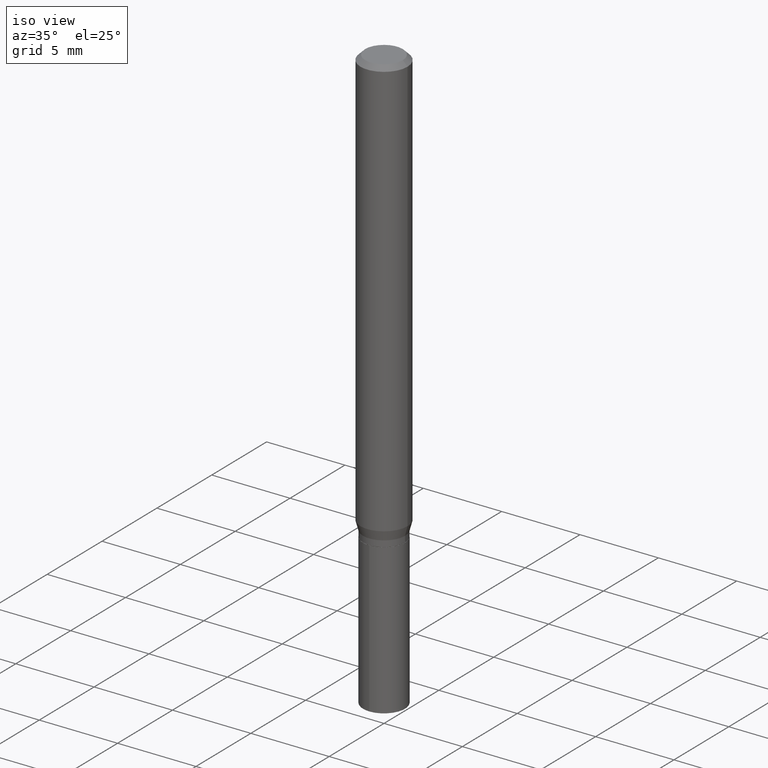
[diagram: clean part render]
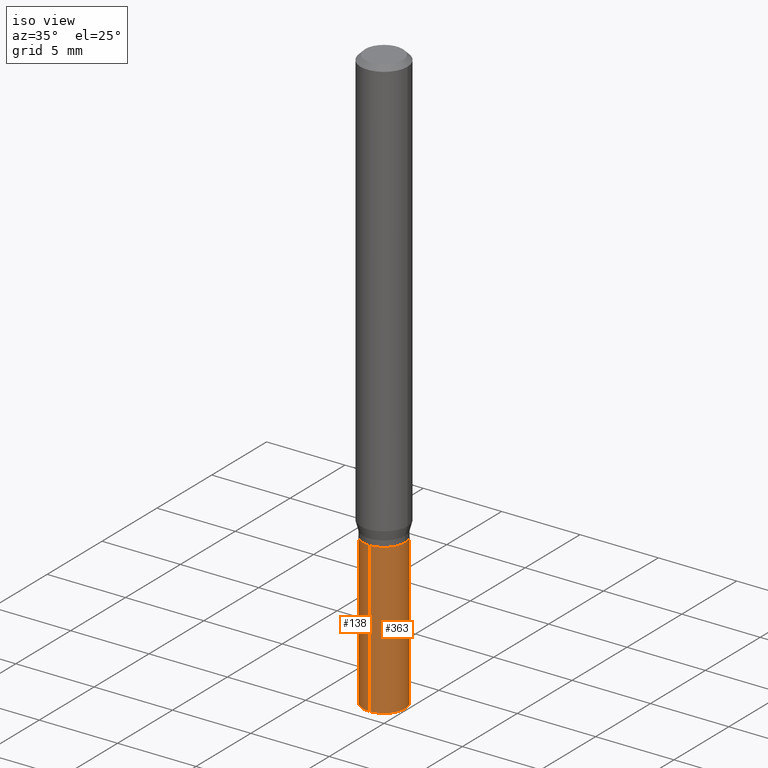
[diagram: same view with one multi-face feature highlighted, each face labeled with its STEP entity id]
A machine part, iso view. The highlighted faces form ONE feature: a constant-radius fillet chain: 2 tangent blend faces with common blend radius 1.3398 mm. The faces share edges in the B-rep.
Their STEP definitions:
[1] entity #138 (Cylinder):
#35 = VECTOR ( 'NONE', #267, 39.37007874015748143 ) ;
#48 = CIRCLE ( 'NONE', #58, 0.05274999999999999828 ) ;
#52 = DIRECTION ( 'NONE',  ( -2.445458899330790108E-29, 3.491495526022433205E-15, 1.000000000000000000 ) ) ;
#58 = AXIS2_PLACEMENT_3D ( 'NONE', #408, #118, #337 ) ;
#83 = LINE ( 'NONE', #87, #185 ) ;
#87 = CARTESIAN_POINT ( 'NONE',  ( -3.683512812479237438E-16, -0.05275000000000382161, -1.094499999999999806 ) ) ;
#113 = ORIENTED_EDGE ( 'NONE', *, *, #489, .F. ) ;
#118 = DIRECTION ( 'NONE',  ( -2.445458899330790108E-29, 3.491495526022433205E-15, 1.000000000000000000 ) ) ;
#124 = FACE_OUTER_BOUND ( 'NONE', #160, .T. ) ;
#138 = ADVANCED_FACE ( 'NONE', ( #124 ), #421, .T. ) ;
#151 = LINE ( 'NONE', #300, #35 ) ;
#156 = VERTEX_POINT ( 'NONE', #387 ) ;
#160 = EDGE_LOOP ( 'NONE', ( #455, #373, #446, #113 ) ) ;
#176 = AXIS2_PLACEMENT_3D ( 'NONE', #280, #52, #462 ) ;
#183 = VERTEX_POINT ( 'NONE', #432 ) ;
#185 = VECTOR ( 'NONE', #390, 39.37007874015748143 ) ;
#188 = CARTESIAN_POINT ( 'NONE',  ( -3.683512812479237438E-16, -0.05275000000000382161, -1.094499999999999806 ) ) ;
#198 = EDGE_CURVE ( 'NONE', #156, #397, #83, .T. ) ;
#214 = CARTESIAN_POINT ( 'NONE',  ( 3.748112931134887783E-16, 0.05274999999999485656, -1.471502271032324227 ) ) ;
#259 = VERTEX_POINT ( 'NONE', #214 ) ;
#267 = DIRECTION ( 'NONE',  ( -2.445458899330790108E-29, 3.491495526022433599E-15, 1.000000000000000000 ) ) ;
#280 = CARTESIAN_POINT ( 'NONE',  ( 2.676565608369631794E-29, -3.821426325363822773E-15, -1.094499999999999806 ) ) ;
#290 = CIRCLE ( 'NONE', #403, 0.05274999999999999828 ) ;
#300 = CARTESIAN_POINT ( 'NONE',  ( 3.748112931134795092E-16, 0.05274999999999616801, -1.094500000000000028 ) ) ;
#331 = DIRECTION ( 'NONE',  ( -6.982962677686265133E-15, -1.000000000000000000, 2.589429377880818329E-15 ) ) ;
#337 = DIRECTION ( 'NONE',  ( -6.982962677686265133E-15, -1.000000000000000000, 5.178858755761636657E-15 ) ) ;
#373 = ORIENTED_EDGE ( 'NONE', *, *, #447, .T. ) ;
#387 = CARTESIAN_POINT ( 'NONE',  ( -3.683512812479145733E-16, -0.05275000000000514694, -1.471502271032323783 ) ) ;
#390 = DIRECTION ( 'NONE',  ( -2.445458899330790108E-29, 3.491495526022433599E-15, 1.000000000000000000 ) ) ;
#397 = VERTEX_POINT ( 'NONE', #188 ) ;
#403 = AXIS2_PLACEMENT_3D ( 'NONE', #415, #448, #331 ) ;
#408 = CARTESIAN_POINT ( 'NONE',  ( 3.598509167133547340E-29, -5.137728067973478968E-15, -1.471502271032324005 ) ) ;
#415 = CARTESIAN_POINT ( 'NONE',  ( 2.676565608369631794E-29, -3.821426325363822773E-15, -1.094499999999999806 ) ) ;
#421 = CYLINDRICAL_SURFACE ( 'NONE', #176, 0.05274999999999999828 ) ;
#432 = CARTESIAN_POINT ( 'NONE',  ( 3.748112931134887783E-16, 0.05274999999999616801, -1.094500000000000028 ) ) ;
#446 = ORIENTED_EDGE ( 'NONE', *, *, #198, .T. ) ;
#447 = EDGE_CURVE ( 'NONE', #259, #156, #48, .T. ) ;
#448 = DIRECTION ( 'NONE',  ( -2.445458899330790108E-29, 3.491495526022433205E-15, 1.000000000000000000 ) ) ;
#455 = ORIENTED_EDGE ( 'NONE', *, *, #481, .F. ) ;
#462 = DIRECTION ( 'NONE',  ( -6.982962677686265133E-15, -1.000000000000000000, 2.589429377880818329E-15 ) ) ;
#481 = EDGE_CURVE ( 'NONE', #259, #183, #151, .T. ) ;
#489 = EDGE_CURVE ( 'NONE', #183, #397, #290, .T. ) ;
[2] entity #363 (Cylinder):
#14 = CYLINDRICAL_SURFACE ( 'NONE', #425, 0.05274999999999999828 ) ;
#24 = DIRECTION ( 'NONE',  ( -6.982962677686265133E-15, -1.000000000000000000, 5.178858755761636657E-15 ) ) ;
#35 = VECTOR ( 'NONE', #267, 39.37007874015748143 ) ;
#83 = LINE ( 'NONE', #87, #185 ) ;
#87 = CARTESIAN_POINT ( 'NONE',  ( -3.683512812479237438E-16, -0.05275000000000382161, -1.094499999999999806 ) ) ;
#100 = CIRCLE ( 'NONE', #255, 0.05274999999999999828 ) ;
#139 = CARTESIAN_POINT ( 'NONE',  ( 2.676565608369631794E-29, -3.821426325363822773E-15, -1.094499999999999806 ) ) ;
#142 = CIRCLE ( 'NONE', #244, 0.05274999999999999828 ) ;
#151 = LINE ( 'NONE', #300, #35 ) ;
#156 = VERTEX_POINT ( 'NONE', #387 ) ;
#159 = ORIENTED_EDGE ( 'NONE', *, *, #465, .T. ) ;
#168 = ORIENTED_EDGE ( 'NONE', *, *, #481, .T. ) ;
#172 = DIRECTION ( 'NONE',  ( -2.445458899330790108E-29, 3.491495526022433205E-15, 1.000000000000000000 ) ) ;
#173 = CARTESIAN_POINT ( 'NONE',  ( 2.676565608369631794E-29, -3.821426325363822773E-15, -1.094499999999999806 ) ) ;
#183 = VERTEX_POINT ( 'NONE', #432 ) ;
#185 = VECTOR ( 'NONE', #390, 39.37007874015748143 ) ;
#188 = CARTESIAN_POINT ( 'NONE',  ( -3.683512812479237438E-16, -0.05275000000000382161, -1.094499999999999806 ) ) ;
#198 = EDGE_CURVE ( 'NONE', #156, #397, #83, .T. ) ;
#214 = CARTESIAN_POINT ( 'NONE',  ( 3.748112931134887783E-16, 0.05274999999999485656, -1.471502271032324227 ) ) ;
#244 = AXIS2_PLACEMENT_3D ( 'NONE', #372, #406, #24 ) ;
#253 = FACE_OUTER_BOUND ( 'NONE', #266, .T. ) ;
#255 = AXIS2_PLACEMENT_3D ( 'NONE', #139, #172, #361 ) ;
#259 = VERTEX_POINT ( 'NONE', #214 ) ;
#266 = EDGE_LOOP ( 'NONE', ( #159, #168, #391, #407 ) ) ;
#267 = DIRECTION ( 'NONE',  ( -2.445458899330790108E-29, 3.491495526022433599E-15, 1.000000000000000000 ) ) ;
#272 = EDGE_CURVE ( 'NONE', #397, #183, #100, .T. ) ;
#300 = CARTESIAN_POINT ( 'NONE',  ( 3.748112931134795092E-16, 0.05274999999999616801, -1.094500000000000028 ) ) ;
#325 = DIRECTION ( 'NONE',  ( -6.982962677686265133E-15, -1.000000000000000000, 2.589429377880818329E-15 ) ) ;
#361 = DIRECTION ( 'NONE',  ( -6.982962677686265133E-15, -1.000000000000000000, 2.589429377880818329E-15 ) ) ;
#363 = ADVANCED_FACE ( 'NONE', ( #253 ), #14, .T. ) ;
#372 = CARTESIAN_POINT ( 'NONE',  ( 3.598509167133547340E-29, -5.137728067973478968E-15, -1.471502271032324005 ) ) ;
#387 = CARTESIAN_POINT ( 'NONE',  ( -3.683512812479145733E-16, -0.05275000000000514694, -1.471502271032323783 ) ) ;
#390 = DIRECTION ( 'NONE',  ( -2.445458899330790108E-29, 3.491495526022433599E-15, 1.000000000000000000 ) ) ;
#391 = ORIENTED_EDGE ( 'NONE', *, *, #272, .F. ) ;
#397 = VERTEX_POINT ( 'NONE', #188 ) ;
#406 = DIRECTION ( 'NONE',  ( -2.445458899330790108E-29, 3.491495526022433205E-15, 1.000000000000000000 ) ) ;
#407 = ORIENTED_EDGE ( 'NONE', *, *, #198, .F. ) ;
#425 = AXIS2_PLACEMENT_3D ( 'NONE', #173, #434, #325 ) ;
#432 = CARTESIAN_POINT ( 'NONE',  ( 3.748112931134887783E-16, 0.05274999999999616801, -1.094500000000000028 ) ) ;
#434 = DIRECTION ( 'NONE',  ( -2.445458899330790108E-29, 3.491495526022433205E-15, 1.000000000000000000 ) ) ;
#465 = EDGE_CURVE ( 'NONE', #156, #259, #142, .T. ) ;
#481 = EDGE_CURVE ( 'NONE', #259, #183, #151, .T. ) ;